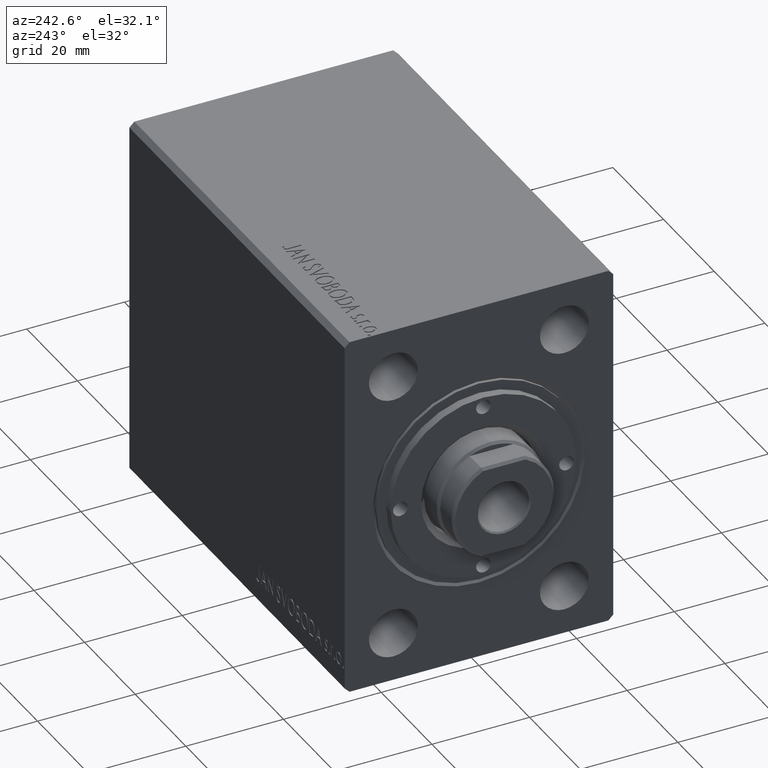
[diagram: clean part render]
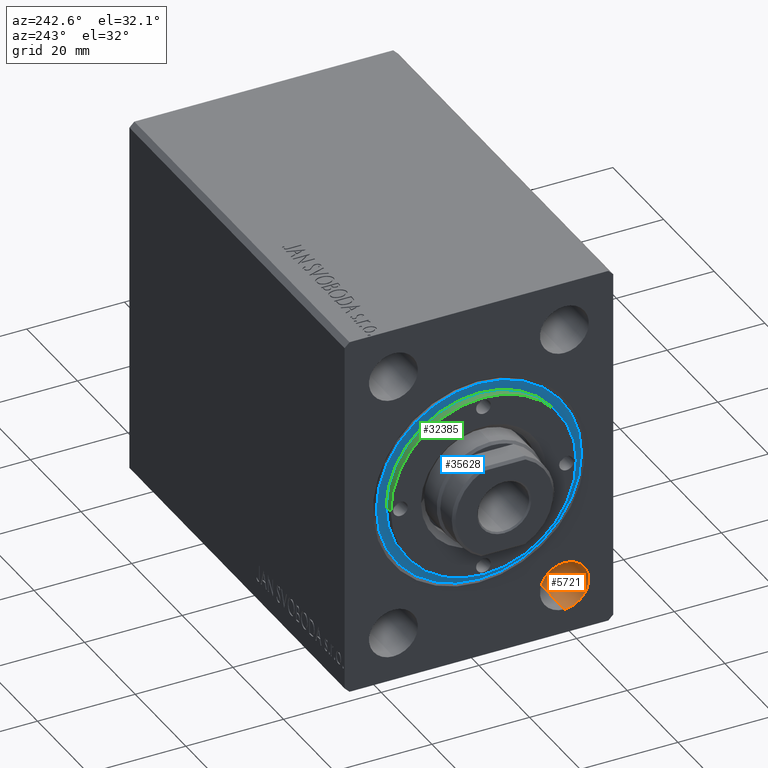
[diagram: same view with three faces highlighted in distinct colors, each labeled with its STEP entity id]
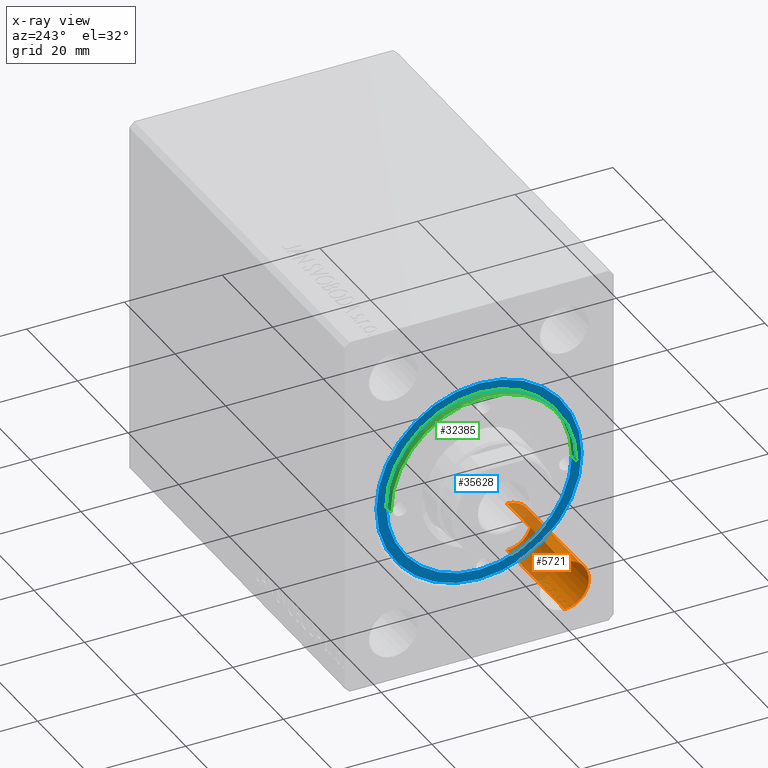
[diagram: x-ray of the same camera — body ghosted, the three highlighted faces saturated]
A machine part, auxiliary view with three faces highlighted in distinct colors.
The next image is the same camera in x-ray (body ghosted, the three faces saturated) — at least one of them is partly hidden behind the body in this view.
Their STEP definitions:

[orange] entity #5721 — the highlighted cylindrical surface (edge-blend (fillet) strip) has radius 5 mm, axis along (-1, -0, -0).
#595 = VERTEX_POINT ( 'NONE', #29200 ) ;
#4320 = EDGE_CURVE ( 'NONE', #595, #7710, #16931, .T. ) ;
#4578 = DIRECTION ( 'NONE',  ( 0.000000000000000000, 0.000000000000000000, 1.000000000000000000 ) ) ;
#5721 = ADVANCED_FACE ( 'NONE', ( #21274 ), #34887, .F. ) ;
#5926 = ORIENTED_EDGE ( 'NONE', *, *, #16289, .F. ) ;
#7035 = ORIENTED_EDGE ( 'NONE', *, *, #29682, .T. ) ;
#7710 = VERTEX_POINT ( 'NONE', #31323 ) ;
#10062 = CARTESIAN_POINT ( 'NONE',  ( 1.224646799147350495E-16, -17.50000000000000000, -32.49999999999999289 ) ) ;
#11229 = CARTESIAN_POINT ( 'NONE',  ( 0.000000000000000000, -17.50000000000000000, -27.49999999999999645 ) ) ;
#16205 = DIRECTION ( 'NONE',  ( -1.000000000000000000, -0.000000000000000000, -0.000000000000000000 ) ) ;
#16289 = EDGE_CURVE ( 'NONE', #7710, #44097, #33604, .T. ) ;
#16931 = CIRCLE ( 'NONE', #24070, 4.999999999999993783 ) ;
#21274 = FACE_OUTER_BOUND ( 'NONE', #28479, .T. ) ;
#22132 = CARTESIAN_POINT ( 'NONE',  ( 22.67000000000000171, -17.50000000000000000, -27.49999999999999645 ) ) ;
#24070 = AXIS2_PLACEMENT_3D ( 'NONE', #22132, #28626, #35539 ) ;
#25325 = CARTESIAN_POINT ( 'NONE',  ( 0.000000000000000000, -17.50000000000000000, -32.49999999999999289 ) ) ;
#25987 = CIRCLE ( 'NONE', #35273, 4.999999999999997335 ) ;
#28021 = LINE ( 'NONE', #25325, #43899 ) ;
#28247 = DIRECTION ( 'NONE',  ( -1.000000000000000000, -0.000000000000000000, -0.000000000000000000 ) ) ;
#28479 = EDGE_LOOP ( 'NONE', ( #28869, #29916, #7035, #5926 ) ) ;
#28626 = DIRECTION ( 'NONE',  ( -1.000000000000000000, -0.000000000000000000, -0.000000000000000000 ) ) ;
#28869 = ORIENTED_EDGE ( 'NONE', *, *, #4320, .F. ) ;
#29200 = CARTESIAN_POINT ( 'NONE',  ( 22.67000000000000171, -17.50000000000000000, -32.49999999999998579 ) ) ;
#29682 = EDGE_CURVE ( 'NONE', #44034, #44097, #25987, .T. ) ;
#29916 = ORIENTED_EDGE ( 'NONE', *, *, #37760, .T. ) ;
#31323 = CARTESIAN_POINT ( 'NONE',  ( 22.67000000000000171, -17.50000000000000000, -22.50000000000000355 ) ) ;
#32176 = DIRECTION ( 'NONE',  ( 0.000000000000000000, 0.000000000000000000, 1.000000000000000000 ) ) ;
#32631 = AXIS2_PLACEMENT_3D ( 'NONE', #11229, #32837, #32176 ) ;
#32837 = DIRECTION ( 'NONE',  ( -1.000000000000000000, -0.000000000000000000, -0.000000000000000000 ) ) ;
#33604 = LINE ( 'NONE', #33828, #37495 ) ;
#33828 = CARTESIAN_POINT ( 'NONE',  ( 0.000000000000000000, -17.50000000000000000, -22.50000000000000000 ) ) ;
#33946 = CARTESIAN_POINT ( 'NONE',  ( 1.224646799147350495E-16, -17.50000000000000000, -22.50000000000000000 ) ) ;
#34717 = CARTESIAN_POINT ( 'NONE',  ( 1.224646799147350495E-16, -17.50000000000000000, -27.49999999999999645 ) ) ;
#34887 = CYLINDRICAL_SURFACE ( 'NONE', #32631, 4.999999999999997335 ) ;
#35273 = AXIS2_PLACEMENT_3D ( 'NONE', #34717, #41635, #4578 ) ;
#35539 = DIRECTION ( 'NONE',  ( 0.000000000000000000, 0.000000000000000000, 1.000000000000000000 ) ) ;
#37495 = VECTOR ( 'NONE', #16205, 1000.000000000000000 ) ;
#37760 = EDGE_CURVE ( 'NONE', #595, #44034, #28021, .T. ) ;
#41635 = DIRECTION ( 'NONE',  ( -1.000000000000000000, -0.000000000000000000, -0.000000000000000000 ) ) ;
#43899 = VECTOR ( 'NONE', #28247, 1000.000000000000000 ) ;
#44034 = VERTEX_POINT ( 'NONE', #10062 ) ;
#44097 = VERTEX_POINT ( 'NONE', #33946 ) ;

[blue] entity #35628 — the highlighted planar face has unit normal (-1, 0, 0).
#327 = ORIENTED_EDGE ( 'NONE', *, *, #7861, .T. ) ;
#522 = CIRCLE ( 'NONE', #38257, 19.00000000000000000 ) ;
#814 = EDGE_CURVE ( 'NONE', #40769, #32427, #522, .T. ) ;
#2344 = CIRCLE ( 'NONE', #19444, 19.00000000000000000 ) ;
#3668 = CIRCLE ( 'NONE', #25047, 21.00000000000000000 ) ;
#5387 = DIRECTION ( 'NONE',  ( 1.000000000000000000, 0.000000000000000000, 0.000000000000000000 ) ) ;
#7523 = CARTESIAN_POINT ( 'NONE',  ( 0.000000000000000000, 0.000000000000000000, 65.00000000000000000 ) ) ;
#7861 = EDGE_CURVE ( 'NONE', #25477, #13596, #31996, .T. ) ;
#8754 = CARTESIAN_POINT ( 'NONE',  ( 21.00000000000000000, 2.571758278209441661E-15, 65.00000000000000000 ) ) ;
#9266 = DIRECTION ( 'NONE',  ( 1.000000000000000000, 0.000000000000000000, 0.000000000000000000 ) ) ;
#13495 = AXIS2_PLACEMENT_3D ( 'NONE', #39323, #33293, #25481 ) ;
#13596 = VERTEX_POINT ( 'NONE', #35000 ) ;
#14248 = DIRECTION ( 'NONE',  ( 1.000000000000000000, 0.000000000000000000, -0.000000000000000000 ) ) ;
#14894 = CARTESIAN_POINT ( 'NONE',  ( 0.000000000000000000, 0.000000000000000000, 65.00000000000000000 ) ) ;
#15105 = FACE_OUTER_BOUND ( 'NONE', #43139, .T. ) ;
#16137 = ORIENTED_EDGE ( 'NONE', *, *, #23573, .F. ) ;
#17083 = CARTESIAN_POINT ( 'NONE',  ( -19.00000000000000000, 0.000000000000000000, 65.00000000000000000 ) ) ;
#19082 = EDGE_CURVE ( 'NONE', #13596, #25477, #3668, .T. ) ;
#19444 = AXIS2_PLACEMENT_3D ( 'NONE', #7523, #38751, #9266 ) ;
#20138 = CARTESIAN_POINT ( 'NONE',  ( 0.000000000000000000, 0.000000000000000000, 65.00000000000000000 ) ) ;
#20505 = ORIENTED_EDGE ( 'NONE', *, *, #19082, .T. ) ;
#22772 = DIRECTION ( 'NONE',  ( 0.000000000000000000, 0.000000000000000000, 1.000000000000000000 ) ) ;
#23573 = EDGE_CURVE ( 'NONE', #32427, #40769, #2344, .T. ) ;
#24316 = EDGE_LOOP ( 'NONE', ( #16137, #37107 ) ) ;
#25047 = AXIS2_PLACEMENT_3D ( 'NONE', #35942, #22772, #5387 ) ;
#25145 = FACE_BOUND ( 'NONE', #24316, .T. ) ;
#25477 = VERTEX_POINT ( 'NONE', #8754 ) ;
#25481 = DIRECTION ( 'NONE',  ( 1.000000000000000000, 0.000000000000000000, 0.000000000000000000 ) ) ;
#28058 = PLANE ( 'NONE',  #33876 ) ;
#31996 = CIRCLE ( 'NONE', #13495, 21.00000000000000000 ) ;
#32427 = VERTEX_POINT ( 'NONE', #17083 ) ;
#33293 = DIRECTION ( 'NONE',  ( 0.000000000000000000, 0.000000000000000000, 1.000000000000000000 ) ) ;
#33876 = AXIS2_PLACEMENT_3D ( 'NONE', #14894, #37891, #14248 ) ;
#35000 = CARTESIAN_POINT ( 'NONE',  ( -21.00000000000000000, 0.000000000000000000, 65.00000000000000000 ) ) ;
#35628 = ADVANCED_FACE ( 'NONE', ( #25145, #15105 ), #28058, .T. ) ;
#35942 = CARTESIAN_POINT ( 'NONE',  ( 0.000000000000000000, 0.000000000000000000, 65.00000000000000000 ) ) ;
#37107 = ORIENTED_EDGE ( 'NONE', *, *, #814, .F. ) ;
#37891 = DIRECTION ( 'NONE',  ( 0.000000000000000000, 0.000000000000000000, 1.000000000000000000 ) ) ;
#38257 = AXIS2_PLACEMENT_3D ( 'NONE', #20138, #39805, #42310 ) ;
#38751 = DIRECTION ( 'NONE',  ( 0.000000000000000000, 0.000000000000000000, 1.000000000000000000 ) ) ;
#39323 = CARTESIAN_POINT ( 'NONE',  ( 0.000000000000000000, 0.000000000000000000, 65.00000000000000000 ) ) ;
#39805 = DIRECTION ( 'NONE',  ( 0.000000000000000000, 0.000000000000000000, 1.000000000000000000 ) ) ;
#40769 = VERTEX_POINT ( 'NONE', #44112 ) ;
#42310 = DIRECTION ( 'NONE',  ( 1.000000000000000000, 0.000000000000000000, 0.000000000000000000 ) ) ;
#43139 = EDGE_LOOP ( 'NONE', ( #20505, #327 ) ) ;
#44112 = CARTESIAN_POINT ( 'NONE',  ( 19.00000000000000000, 2.326828918379970970E-15, 65.00000000000000000 ) ) ;

[green] entity #32385 — the highlighted cylindrical surface (partial cylindrical patch) has radius 19 mm, axis along (1, -0, 0).
#321 = VECTOR ( 'NONE', #2814, 1000.000000000000000 ) ;
#1044 = AXIS2_PLACEMENT_3D ( 'NONE', #43640, #39421, #32939 ) ;
#2344 = CIRCLE ( 'NONE', #19444, 19.00000000000000000 ) ;
#2481 = DIRECTION ( 'NONE',  ( -0.000000000000000000, -0.000000000000000000, -1.000000000000000000 ) ) ;
#2814 = DIRECTION ( 'NONE',  ( -0.000000000000000000, -0.000000000000000000, -1.000000000000000000 ) ) ;
#2936 = DIRECTION ( 'NONE',  ( 0.000000000000000000, 0.000000000000000000, 1.000000000000000000 ) ) ;
#6373 = CARTESIAN_POINT ( 'NONE',  ( 19.00000000000000000, 2.326828918379970970E-15, 66.79999999999999716 ) ) ;
#7523 = CARTESIAN_POINT ( 'NONE',  ( 0.000000000000000000, 0.000000000000000000, 65.00000000000000000 ) ) ;
#8457 = VERTEX_POINT ( 'NONE', #16431 ) ;
#9266 = DIRECTION ( 'NONE',  ( 1.000000000000000000, 0.000000000000000000, 0.000000000000000000 ) ) ;
#9848 = CARTESIAN_POINT ( 'NONE',  ( 0.000000000000000000, 0.000000000000000000, 66.79999999999999716 ) ) ;
#11147 = ORIENTED_EDGE ( 'NONE', *, *, #23573, .T. ) ;
#11770 = AXIS2_PLACEMENT_3D ( 'NONE', #9848, #2936, #16529 ) ;
#12508 = EDGE_LOOP ( 'NONE', ( #30100, #39355, #28882, #11147 ) ) ;
#15074 = CARTESIAN_POINT ( 'NONE',  ( 19.00000000000000000, 2.326828918379970970E-15, 66.79999999999999716 ) ) ;
#16431 = CARTESIAN_POINT ( 'NONE',  ( -19.00000000000000000, 0.000000000000000000, 66.79999999999999716 ) ) ;
#16529 = DIRECTION ( 'NONE',  ( 1.000000000000000000, 0.000000000000000000, 0.000000000000000000 ) ) ;
#16917 = EDGE_CURVE ( 'NONE', #8457, #25183, #21735, .T. ) ;
#17083 = CARTESIAN_POINT ( 'NONE',  ( -19.00000000000000000, 0.000000000000000000, 65.00000000000000000 ) ) ;
#19444 = AXIS2_PLACEMENT_3D ( 'NONE', #7523, #38751, #9266 ) ;
#21735 = CIRCLE ( 'NONE', #11770, 19.00000000000000000 ) ;
#22441 = CYLINDRICAL_SURFACE ( 'NONE', #1044, 19.00000000000000000 ) ;
#23573 = EDGE_CURVE ( 'NONE', #32427, #40769, #2344, .T. ) ;
#25183 = VERTEX_POINT ( 'NONE', #15074 ) ;
#25788 = FACE_OUTER_BOUND ( 'NONE', #12508, .T. ) ;
#27224 = EDGE_CURVE ( 'NONE', #25183, #40769, #36495, .T. ) ;
#28882 = ORIENTED_EDGE ( 'NONE', *, *, #42498, .T. ) ;
#29255 = LINE ( 'NONE', #39524, #41876 ) ;
#30100 = ORIENTED_EDGE ( 'NONE', *, *, #27224, .F. ) ;
#32385 = ADVANCED_FACE ( 'NONE', ( #25788 ), #22441, .T. ) ;
#32427 = VERTEX_POINT ( 'NONE', #17083 ) ;
#32939 = DIRECTION ( 'NONE',  ( -1.000000000000000000, 0.000000000000000000, 0.000000000000000000 ) ) ;
#36495 = LINE ( 'NONE', #6373, #321 ) ;
#38751 = DIRECTION ( 'NONE',  ( 0.000000000000000000, 0.000000000000000000, 1.000000000000000000 ) ) ;
#39355 = ORIENTED_EDGE ( 'NONE', *, *, #16917, .F. ) ;
#39421 = DIRECTION ( 'NONE',  ( -0.000000000000000000, -0.000000000000000000, -1.000000000000000000 ) ) ;
#39524 = CARTESIAN_POINT ( 'NONE',  ( -19.00000000000000000, 0.000000000000000000, 66.79999999999999716 ) ) ;
#40769 = VERTEX_POINT ( 'NONE', #44112 ) ;
#41876 = VECTOR ( 'NONE', #2481, 1000.000000000000000 ) ;
#42498 = EDGE_CURVE ( 'NONE', #8457, #32427, #29255, .T. ) ;
#43640 = CARTESIAN_POINT ( 'NONE',  ( 0.000000000000000000, 0.000000000000000000, 66.79999999999999716 ) ) ;
#44112 = CARTESIAN_POINT ( 'NONE',  ( 19.00000000000000000, 2.326828918379970970E-15, 65.00000000000000000 ) ) ;